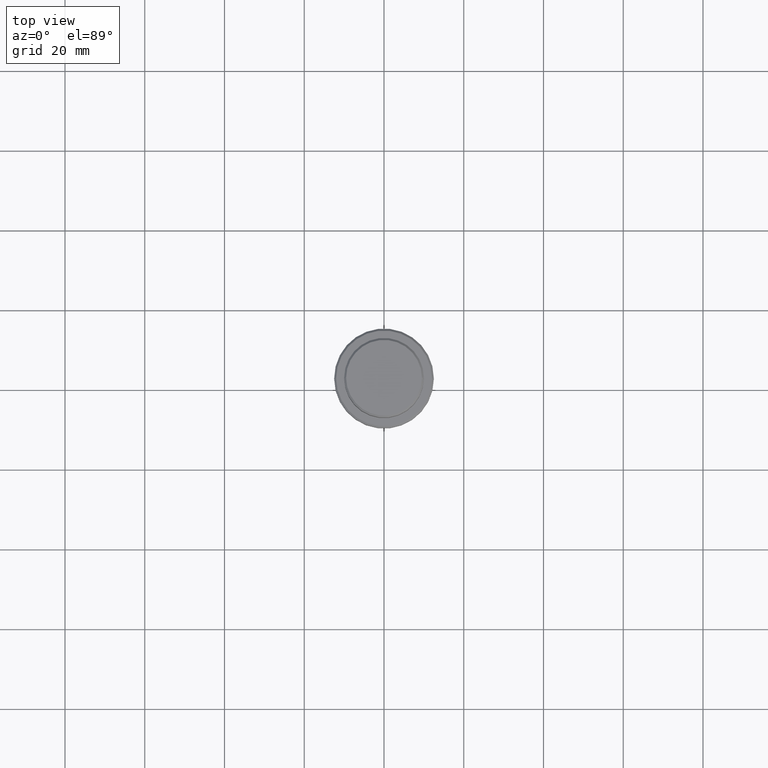
[diagram: clean part render]
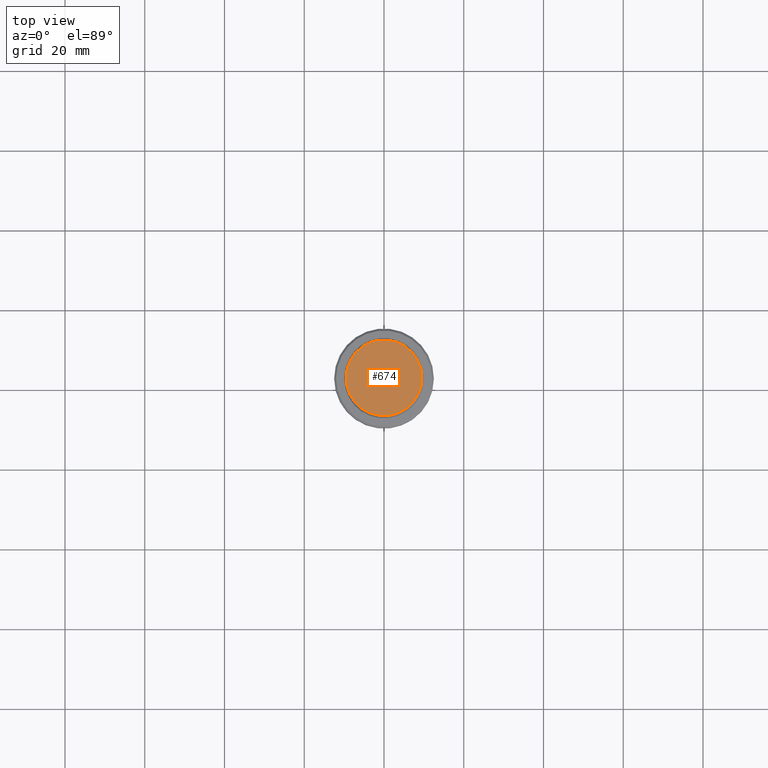
[diagram: same view with one face highlighted and labeled with its STEP entity id]
A machine part, top view. The second image highlights one B-rep face of the part: STEP entity #674.
In plain terms, the highlighted planar face has unit normal (0, -0, 1).
Its self-contained STEP definition (entity closure, byte-faithful):
#7 = AXIS2_PLACEMENT_3D ( 'NONE', #257, #1135, #912 ) ;
#125 = AXIS2_PLACEMENT_3D ( 'NONE', #850, #838, #928 ) ;
#159 = EDGE_CURVE ( 'NONE', #1084, #370, #348, .T. ) ;
#257 = CARTESIAN_POINT ( 'NONE',  ( 0.000000000000000000, 0.000000000000000000, 0.000000000000000000 ) ) ;
#348 = CIRCLE ( 'NONE', #7, 9.500000000000008882 ) ;
#370 = VERTEX_POINT ( 'NONE', #515 ) ;
#373 = CARTESIAN_POINT ( 'NONE',  ( -9.500000000000008882, 0.000000000000000000, 0.000000000000000000 ) ) ;
#438 = EDGE_LOOP ( 'NONE', ( #1261, #516 ) ) ;
#515 = CARTESIAN_POINT ( 'NONE',  ( 9.500000000000008882, 1.194030629168669864E-15, 0.000000000000000000 ) ) ;
#516 = ORIENTED_EDGE ( 'NONE', *, *, #1275, .T. ) ;
#524 = DIRECTION ( 'NONE',  ( 1.000000000000000000, 0.000000000000000000, 0.000000000000000000 ) ) ;
#579 = AXIS2_PLACEMENT_3D ( 'NONE', #1153, #1047, #524 ) ;
#674 = ADVANCED_FACE ( 'NONE', ( #1363 ), #843, .T. ) ;
#838 = DIRECTION ( 'NONE',  ( 0.000000000000000000, -0.000000000000000000, 1.000000000000000000 ) ) ;
#843 = PLANE ( 'NONE',  #125 ) ;
#850 = CARTESIAN_POINT ( 'NONE',  ( 0.000000000000000000, 0.000000000000000000, 0.000000000000000000 ) ) ;
#912 = DIRECTION ( 'NONE',  ( 1.000000000000000000, 0.000000000000000000, 0.000000000000000000 ) ) ;
#928 = DIRECTION ( 'NONE',  ( 1.000000000000000000, 0.000000000000000000, 0.000000000000000000 ) ) ;
#1047 = DIRECTION ( 'NONE',  ( -0.000000000000000000, -0.000000000000000000, 1.000000000000000000 ) ) ;
#1084 = VERTEX_POINT ( 'NONE', #373 ) ;
#1086 = CIRCLE ( 'NONE', #579, 9.500000000000008882 ) ;
#1135 = DIRECTION ( 'NONE',  ( -0.000000000000000000, -0.000000000000000000, 1.000000000000000000 ) ) ;
#1153 = CARTESIAN_POINT ( 'NONE',  ( 0.000000000000000000, 0.000000000000000000, 0.000000000000000000 ) ) ;
#1261 = ORIENTED_EDGE ( 'NONE', *, *, #159, .T. ) ;
#1275 = EDGE_CURVE ( 'NONE', #370, #1084, #1086, .T. ) ;
#1363 = FACE_OUTER_BOUND ( 'NONE', #438, .T. ) ;